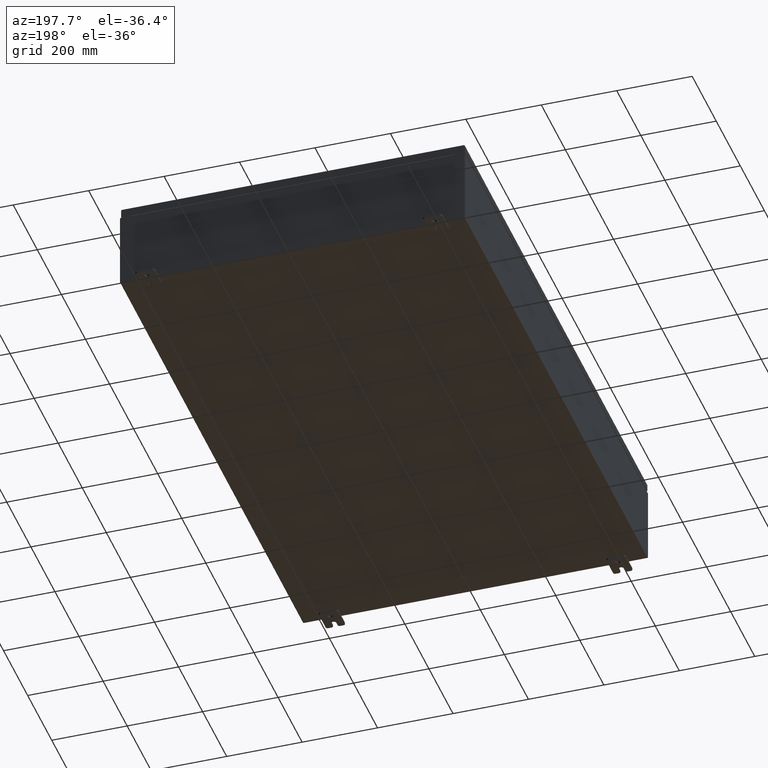
[diagram: clean part render]
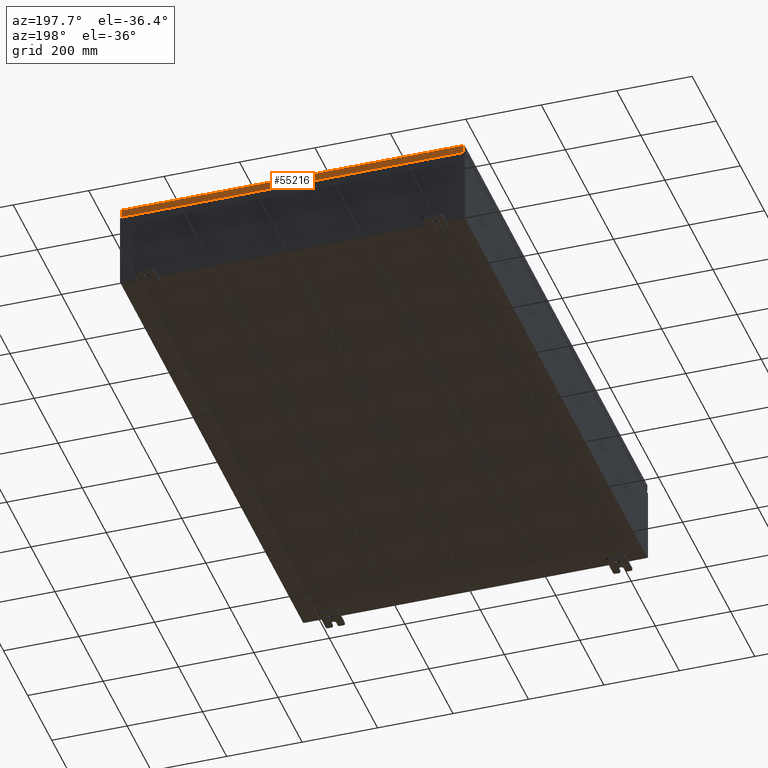
[diagram: same view with one face highlighted and labeled with its STEP entity id]
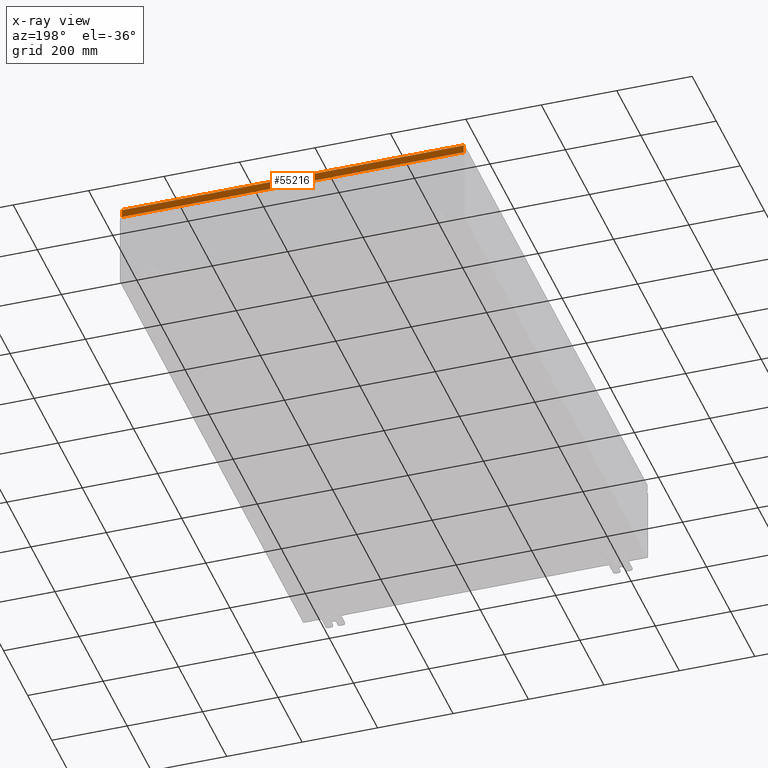
[diagram: x-ray of the same camera — body ghosted, the highlighted face saturated]
A machine part, auxiliary view. The second image highlights one B-rep face of the part: STEP entity #55216.
The next image is the same camera in x-ray: the body ghosted, the highlighted face saturated — about 0% of this face is hidden behind the body in this view.
In plain terms, the highlighted planar face has unit normal (0, -1, -0).
Its self-contained STEP definition (entity closure, byte-faithful):
#1814 = CARTESIAN_POINT ( 'NONE',  ( 17.84865786437626800, 29.93750000000001100, -0.9376999999999997600 ) ) ;
#2641 = ORIENTED_EDGE ( 'NONE', *, *, #43046, .F. ) ;
#4126 = LINE ( 'NONE', #39514, #20062 ) ;
#11555 = CARTESIAN_POINT ( 'NONE',  ( -17.84865786437626800, 29.93750000000000700, -0.08769999999999550400 ) ) ;
#15192 = DIRECTION ( 'NONE',  ( -0.0000000000000000000, 5.064839849203706200E-015, -1.000000000000000000 ) ) ;
#15783 = AXIS2_PLACEMENT_3D ( 'NONE', #68207, #68438, #36383 ) ;
#18834 = EDGE_CURVE ( 'NONE', #38973, #51241, #28015, .T. ) ;
#19055 = VERTEX_POINT ( 'NONE', #11555 ) ;
#19891 = FACE_OUTER_BOUND ( 'NONE', #21638, .T. ) ;
#19922 = ORIENTED_EDGE ( 'NONE', *, *, #25959, .F. ) ;
#20062 = VECTOR ( 'NONE', #44906, 39.37007874015748100 ) ;
#21638 = EDGE_LOOP ( 'NONE', ( #19922, #50511, #2641, #55131 ) ) ;
#24719 = CARTESIAN_POINT ( 'NONE',  ( -17.93749999999999600, 29.93750000000000700, -0.08769999999999550400 ) ) ;
#25959 = EDGE_CURVE ( 'NONE', #38973, #19055, #48907, .T. ) ;
#26381 = VECTOR ( 'NONE', #31645, 39.37007874015748100 ) ;
#28015 = LINE ( 'NONE', #47765, #26381 ) ;
#31645 = DIRECTION ( 'NONE',  ( 0.0000000000000000000, 5.064839849203706200E-015, -1.000000000000000000 ) ) ;
#32174 = VERTEX_POINT ( 'NONE', #56792 ) ;
#34321 = EDGE_CURVE ( 'NONE', #19055, #32174, #42524, .T. ) ;
#36146 = PLANE ( 'NONE',  #15783 ) ;
#36383 = DIRECTION ( 'NONE',  ( 0.0000000000000000000, 5.064839849203706200E-015, -1.000000000000000000 ) ) ;
#38973 = VERTEX_POINT ( 'NONE', #44982 ) ;
#39514 = CARTESIAN_POINT ( 'NONE',  ( -17.93749999999999600, 29.93750000000001100, -0.9377000000000042000 ) ) ;
#42524 = LINE ( 'NONE', #47173, #69291 ) ;
#43046 = EDGE_CURVE ( 'NONE', #32174, #51241, #4126, .T. ) ;
#44906 = DIRECTION ( 'NONE',  ( 1.000000000000000000, 1.751623080406021300E-046, 1.218385167906012900E-016 ) ) ;
#44982 = CARTESIAN_POINT ( 'NONE',  ( 17.84865786437626800, 29.93750000000000700, -0.08769999999999550400 ) ) ;
#47173 = CARTESIAN_POINT ( 'NONE',  ( -17.84865786437626400, 29.93750000000000700, -0.07469999999999962800 ) ) ;
#47765 = CARTESIAN_POINT ( 'NONE',  ( 17.84865786437626800, 29.93750000000000700, 1.518894566415475700E-013 ) ) ;
#48907 = LINE ( 'NONE', #24719, #50592 ) ;
#50511 = ORIENTED_EDGE ( 'NONE', *, *, #18834, .T. ) ;
#50592 = VECTOR ( 'NONE', #62112, 39.37007874015748100 ) ;
#51241 = VERTEX_POINT ( 'NONE', #1814 ) ;
#55131 = ORIENTED_EDGE ( 'NONE', *, *, #34321, .F. ) ;
#55216 = ADVANCED_FACE ( 'NONE', ( #19891 ), #36146, .F. ) ;
#56792 = CARTESIAN_POINT ( 'NONE',  ( -17.84865786437626400, 29.93750000000001100, -0.9377000000000042000 ) ) ;
#62112 = DIRECTION ( 'NONE',  ( -1.000000000000000000, -6.170925750089125200E-031, -3.189293793798670500E-045 ) ) ;
#68207 = CARTESIAN_POINT ( 'NONE',  ( -1.847420896432932100E-029, 29.93750000000000700, 1.518894566415475700E-013 ) ) ;
#68438 = DIRECTION ( 'NONE',  ( 6.170925750089124300E-031, -1.000000000000000000, -5.064839849203706200E-015 ) ) ;
#69291 = VECTOR ( 'NONE', #15192, 39.37007874015748100 ) ;